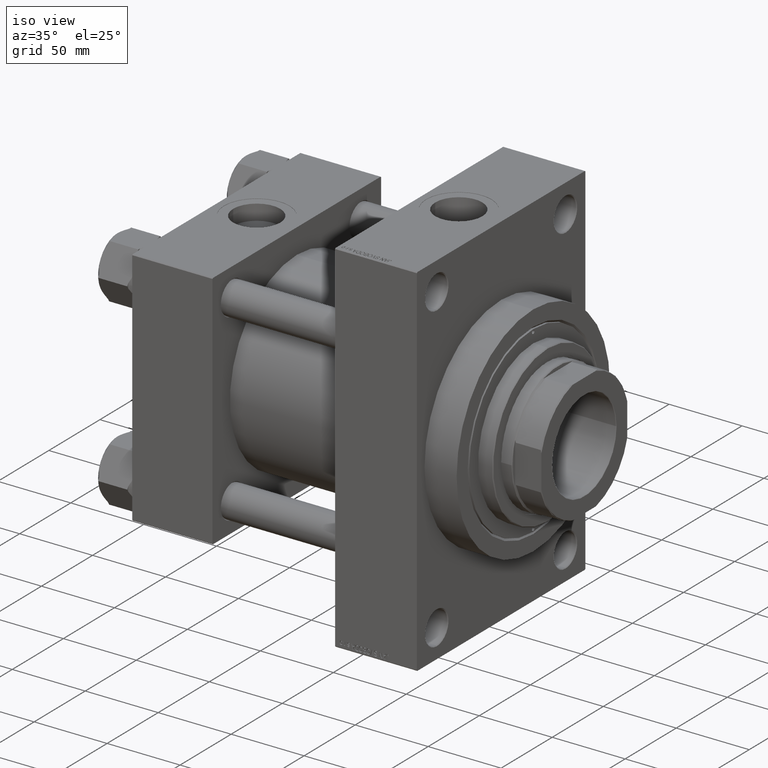
[diagram: clean part render]
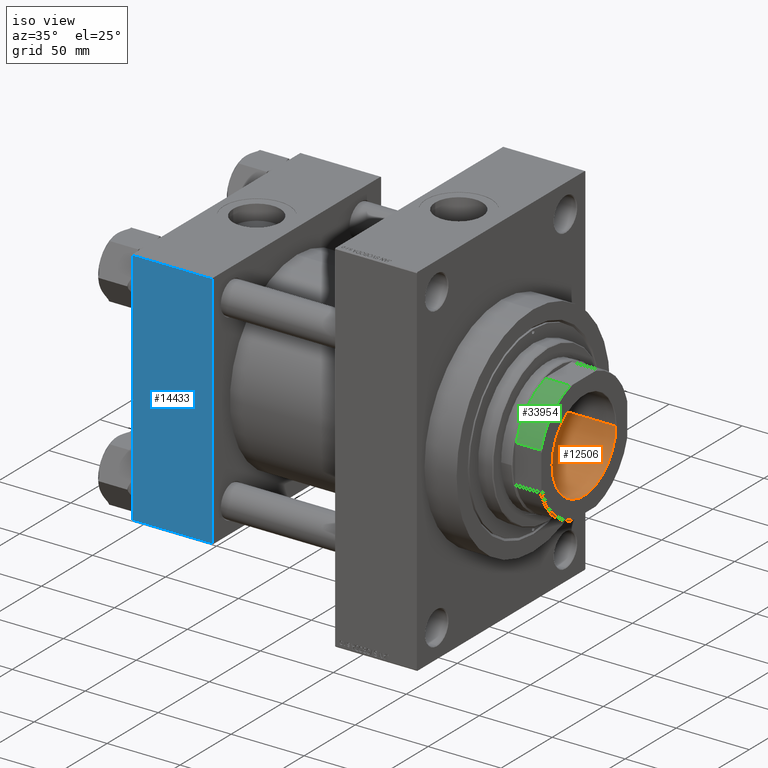
[diagram: same view with three faces highlighted in distinct colors, each labeled with its STEP entity id]
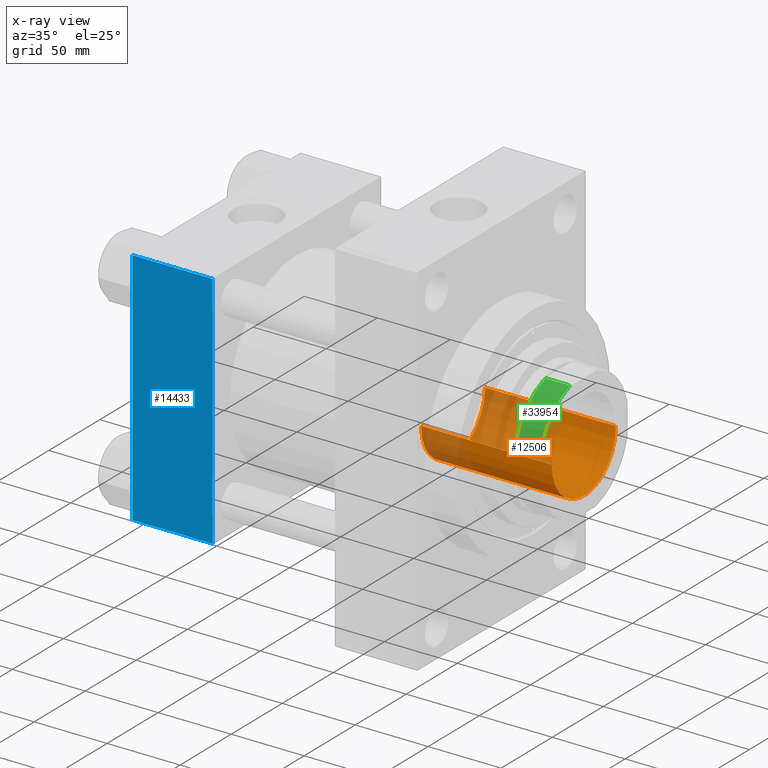
[diagram: x-ray of the same camera — body ghosted, the three highlighted faces saturated]
A machine part, iso view with three faces highlighted in distinct colors.
The next image is the same camera in x-ray (body ghosted, the three faces saturated) — at least one of them is partly hidden behind the body in this view.
Their STEP definitions:

[orange] entity #12506 — the highlighted cylindrical surface (partial cylindrical patch) has radius 31.25 mm, axis along (1, 0, 0).
#1422 = VERTEX_POINT ( 'NONE', #21569 ) ;
#1540 = ORIENTED_EDGE ( 'NONE', *, *, #22266, .F. ) ;
#1758 = ORIENTED_EDGE ( 'NONE', *, *, #19189, .T. ) ;
#2336 = AXIS2_PLACEMENT_3D ( 'NONE', #26481, #3904, #3413 ) ;
#3413 = DIRECTION ( 'NONE',  ( 1.000000000000000000, 0.000000000000000000, 0.000000000000000000 ) ) ;
#3904 = DIRECTION ( 'NONE',  ( -0.000000000000000000, -0.000000000000000000, 1.000000000000000000 ) ) ;
#3947 = ORIENTED_EDGE ( 'NONE', *, *, #10087, .T. ) ;
#4106 = VECTOR ( 'NONE', #26735, 1000.000000000000000 ) ;
#5589 = CARTESIAN_POINT ( 'NONE',  ( -31.24999999999998579, 3.827021247335477324E-15, 106.9999999999999858 ) ) ;
#8546 = AXIS2_PLACEMENT_3D ( 'NONE', #49613, #25808, #11076 ) ;
#10087 = EDGE_CURVE ( 'NONE', #42101, #1422, #33010, .T. ) ;
#10661 = EDGE_LOOP ( 'NONE', ( #1540, #24785, #1758, #3947 ) ) ;
#10958 = CIRCLE ( 'NONE', #8546, 31.24999999999998579 ) ;
#11076 = DIRECTION ( 'NONE',  ( 1.000000000000000000, 0.000000000000000000, 0.000000000000000000 ) ) ;
#11791 = CARTESIAN_POINT ( 'NONE',  ( 31.24999999999998579, 0.000000000000000000, 106.9999999999999858 ) ) ;
#12506 = ADVANCED_FACE ( 'NONE', ( #41684 ), #34574, .F. ) ;
#18623 = LINE ( 'NONE', #37393, #4106 ) ;
#19189 = EDGE_CURVE ( 'NONE', #26477, #42101, #18623, .T. ) ;
#20014 = DIRECTION ( 'NONE',  ( 1.000000000000000000, 0.000000000000000000, 0.000000000000000000 ) ) ;
#21569 = CARTESIAN_POINT ( 'NONE',  ( -31.24999999999999289, 3.827021247335478113E-15, 196.6999999999999602 ) ) ;
#22266 = EDGE_CURVE ( 'NONE', #47844, #1422, #31793, .T. ) ;
#22488 = AXIS2_PLACEMENT_3D ( 'NONE', #23314, #39774, #20014 ) ;
#23314 = CARTESIAN_POINT ( 'NONE',  ( 0.000000000000000000, 0.000000000000000000, 196.6999999999999602 ) ) ;
#24785 = ORIENTED_EDGE ( 'NONE', *, *, #33615, .F. ) ;
#25808 = DIRECTION ( 'NONE',  ( -0.000000000000000000, -0.000000000000000000, 1.000000000000000000 ) ) ;
#26477 = VERTEX_POINT ( 'NONE', #11791 ) ;
#26481 = CARTESIAN_POINT ( 'NONE',  ( 0.000000000000000000, 0.000000000000000000, 196.9999999999999716 ) ) ;
#26735 = DIRECTION ( 'NONE',  ( -0.000000000000000000, -0.000000000000000000, 1.000000000000000000 ) ) ;
#28241 = CARTESIAN_POINT ( 'NONE',  ( -31.24999999999999289, 3.827021247335478113E-15, 196.9999999999999716 ) ) ;
#31793 = LINE ( 'NONE', #28241, #45486 ) ;
#33010 = CIRCLE ( 'NONE', #22488, 31.24999999999999289 ) ;
#33615 = EDGE_CURVE ( 'NONE', #26477, #47844, #10958, .T. ) ;
#34574 = CYLINDRICAL_SURFACE ( 'NONE', #2336, 31.24999999999999289 ) ;
#37393 = CARTESIAN_POINT ( 'NONE',  ( 31.24999999999999289, 0.000000000000000000, 196.9999999999999716 ) ) ;
#39774 = DIRECTION ( 'NONE',  ( 0.000000000000000000, 0.000000000000000000, 1.000000000000000000 ) ) ;
#41684 = FACE_OUTER_BOUND ( 'NONE', #10661, .T. ) ;
#42101 = VERTEX_POINT ( 'NONE', #42268 ) ;
#42268 = CARTESIAN_POINT ( 'NONE',  ( 31.24999999999999289, 0.000000000000000000, 196.6999999999999602 ) ) ;
#45486 = VECTOR ( 'NONE', #47252, 1000.000000000000000 ) ;
#47252 = DIRECTION ( 'NONE',  ( -0.000000000000000000, -0.000000000000000000, 1.000000000000000000 ) ) ;
#47844 = VERTEX_POINT ( 'NONE', #5589 ) ;
#49613 = CARTESIAN_POINT ( 'NONE',  ( 0.000000000000000000, 0.000000000000000000, 106.9999999999999858 ) ) ;

[blue] entity #14433 — the highlighted planar face has unit normal (0, 1, -0).
#1256 = CARTESIAN_POINT ( 'NONE',  ( 55.00000000000000000, -82.49999999999997158, 82.50000000000001421 ) ) ;
#1293 = VERTEX_POINT ( 'NONE', #10723 ) ;
#1911 = LINE ( 'NONE', #2905, #28309 ) ;
#2905 = CARTESIAN_POINT ( 'NONE',  ( 55.00000000000000000, -82.50000000000000000, -81.99999999999998579 ) ) ;
#5174 = DIRECTION ( 'NONE',  ( -1.000000000000000000, 0.000000000000000000, 0.000000000000000000 ) ) ;
#5529 = EDGE_CURVE ( 'NONE', #9730, #32633, #20289, .T. ) ;
#6781 = EDGE_CURVE ( 'NONE', #14187, #32633, #1911, .T. ) ;
#8892 = AXIS2_PLACEMENT_3D ( 'NONE', #28140, #43606, #36496 ) ;
#9345 = VECTOR ( 'NONE', #36971, 1000.000000000000000 ) ;
#9384 = EDGE_CURVE ( 'NONE', #9730, #1293, #31296, .T. ) ;
#9730 = VERTEX_POINT ( 'NONE', #28916 ) ;
#10096 = CARTESIAN_POINT ( 'NONE',  ( 0.000000000000000000, -82.49999999999997158, 82.50000000000001421 ) ) ;
#10723 = CARTESIAN_POINT ( 'NONE',  ( 0.000000000000000000, -82.49999999999997158, 82.00000000000001421 ) ) ;
#11709 = EDGE_LOOP ( 'NONE', ( #46611, #12321, #23482, #16550 ) ) ;
#12321 = ORIENTED_EDGE ( 'NONE', *, *, #6781, .T. ) ;
#12538 = CARTESIAN_POINT ( 'NONE',  ( 55.00000000000000000, -82.49999999999997158, 82.00000000000001421 ) ) ;
#12922 = DIRECTION ( 'NONE',  ( 0.000000000000000000, -1.682156097916903588E-16, -1.000000000000000000 ) ) ;
#14187 = VERTEX_POINT ( 'NONE', #45643 ) ;
#14433 = ADVANCED_FACE ( 'NONE', ( #48388 ), #17221, .F. ) ;
#16550 = ORIENTED_EDGE ( 'NONE', *, *, #9384, .T. ) ;
#17221 = PLANE ( 'NONE',  #8892 ) ;
#17370 = DIRECTION ( 'NONE',  ( 1.000000000000000000, 0.000000000000000000, 0.000000000000000000 ) ) ;
#20289 = LINE ( 'NONE', #1256, #25013 ) ;
#21917 = VECTOR ( 'NONE', #5174, 1000.000000000000000 ) ;
#21993 = CARTESIAN_POINT ( 'NONE',  ( 55.00000000000000000, -82.50000000000000000, -81.99999999999998579 ) ) ;
#23482 = ORIENTED_EDGE ( 'NONE', *, *, #5529, .F. ) ;
#25013 = VECTOR ( 'NONE', #12922, 1000.000000000000000 ) ;
#28140 = CARTESIAN_POINT ( 'NONE',  ( 55.00000000000000000, -82.49999999999997158, 82.50000000000001421 ) ) ;
#28309 = VECTOR ( 'NONE', #17370, 1000.000000000000000 ) ;
#28916 = CARTESIAN_POINT ( 'NONE',  ( 55.00000000000000000, -82.49999999999997158, 82.00000000000001421 ) ) ;
#31296 = LINE ( 'NONE', #12538, #21917 ) ;
#32633 = VERTEX_POINT ( 'NONE', #21993 ) ;
#32911 = LINE ( 'NONE', #10096, #9345 ) ;
#36496 = DIRECTION ( 'NONE',  ( 0.000000000000000000, 1.682156097916903588E-16, 1.000000000000000000 ) ) ;
#36971 = DIRECTION ( 'NONE',  ( 0.000000000000000000, -1.682156097916903588E-16, -1.000000000000000000 ) ) ;
#40276 = EDGE_CURVE ( 'NONE', #1293, #14187, #32911, .T. ) ;
#43606 = DIRECTION ( 'NONE',  ( 0.000000000000000000, 1.000000000000000000, -1.682156097916903588E-16 ) ) ;
#45643 = CARTESIAN_POINT ( 'NONE',  ( 0.000000000000000000, -82.50000000000000000, -81.99999999999998579 ) ) ;
#46611 = ORIENTED_EDGE ( 'NONE', *, *, #40276, .T. ) ;
#48388 = FACE_OUTER_BOUND ( 'NONE', #11709, .T. ) ;

[green] entity #33954 — the highlighted cylindrical surface (partial cylindrical patch) has radius 44 mm, axis along (1, 0, 0).
#2921 = DIRECTION ( 'NONE',  ( 1.000000000000000000, 0.000000000000000000, 0.000000000000000000 ) ) ;
#3145 = DIRECTION ( 'NONE',  ( -1.000000000000000000, 0.000000000000000000, 0.000000000000000000 ) ) ;
#4601 = CARTESIAN_POINT ( 'NONE',  ( 13.11487704860396164, -42.00000000000000711, 179.4999999999998579 ) ) ;
#8446 = DIRECTION ( 'NONE',  ( -0.000000000000000000, -0.000000000000000000, -1.000000000000000000 ) ) ;
#9912 = CARTESIAN_POINT ( 'NONE',  ( 42.00000000000000000, -13.11487704860398651, -0.001000000000001000089 ) ) ;
#10531 = FACE_OUTER_BOUND ( 'NONE', #45815, .T. ) ;
#10770 = CYLINDRICAL_SURFACE ( 'NONE', #33659, 44.00000000000000000 ) ;
#12305 = VERTEX_POINT ( 'NONE', #15127 ) ;
#13971 = EDGE_CURVE ( 'NONE', #29434, #35358, #36538, .T. ) ;
#15127 = CARTESIAN_POINT ( 'NONE',  ( 13.11487704860396164, -42.00000000000000711, 196.4999999999997442 ) ) ;
#18336 = EDGE_CURVE ( 'NONE', #35358, #12305, #27527, .T. ) ;
#18854 = AXIS2_PLACEMENT_3D ( 'NONE', #38127, #21224, #3145 ) ;
#20179 = CARTESIAN_POINT ( 'NONE',  ( 42.00000000000000000, -13.11487704860398651, 196.4999999999997442 ) ) ;
#20687 = DIRECTION ( 'NONE',  ( -0.000000000000000000, -0.000000000000000000, 1.000000000000000000 ) ) ;
#20845 = CARTESIAN_POINT ( 'NONE',  ( 0.000000000000000000, 0.000000000000000000, 196.4999999999998010 ) ) ;
#21224 = DIRECTION ( 'NONE',  ( -0.000000000000000000, -0.000000000000000000, 1.000000000000000000 ) ) ;
#21430 = LINE ( 'NONE', #32840, #21978 ) ;
#21950 = EDGE_CURVE ( 'NONE', #39083, #12305, #21430, .T. ) ;
#21978 = VECTOR ( 'NONE', #20687, 1000.000000000000000 ) ;
#22883 = ORIENTED_EDGE ( 'NONE', *, *, #21950, .F. ) ;
#24926 = ORIENTED_EDGE ( 'NONE', *, *, #13971, .T. ) ;
#25385 = DIRECTION ( 'NONE',  ( -0.000000000000000000, -0.000000000000000000, 1.000000000000000000 ) ) ;
#27527 = CIRCLE ( 'NONE', #39685, 44.00000000000000000 ) ;
#28618 = EDGE_CURVE ( 'NONE', #39083, #29434, #40711, .T. ) ;
#29434 = VERTEX_POINT ( 'NONE', #39221 ) ;
#32840 = CARTESIAN_POINT ( 'NONE',  ( 13.11487704860396164, -42.00000000000000711, -0.001000000000001000089 ) ) ;
#33659 = AXIS2_PLACEMENT_3D ( 'NONE', #41451, #37900, #2921 ) ;
#33954 = ADVANCED_FACE ( 'NONE', ( #10531 ), #10770, .T. ) ;
#34986 = ORIENTED_EDGE ( 'NONE', *, *, #18336, .T. ) ;
#35358 = VERTEX_POINT ( 'NONE', #20179 ) ;
#36538 = LINE ( 'NONE', #9912, #48538 ) ;
#37900 = DIRECTION ( 'NONE',  ( -0.000000000000000000, -0.000000000000000000, 1.000000000000000000 ) ) ;
#38127 = CARTESIAN_POINT ( 'NONE',  ( 0.000000000000000000, 0.000000000000000000, 179.4999999999999147 ) ) ;
#39083 = VERTEX_POINT ( 'NONE', #4601 ) ;
#39221 = CARTESIAN_POINT ( 'NONE',  ( 42.00000000000000000, -13.11487704860398651, 179.4999999999999147 ) ) ;
#39685 = AXIS2_PLACEMENT_3D ( 'NONE', #20845, #8446, #43435 ) ;
#40711 = CIRCLE ( 'NONE', #18854, 44.00000000000000000 ) ;
#41451 = CARTESIAN_POINT ( 'NONE',  ( 0.000000000000000000, 0.000000000000000000, -0.001000000000001000089 ) ) ;
#43435 = DIRECTION ( 'NONE',  ( 1.000000000000000000, 0.000000000000000000, 0.000000000000000000 ) ) ;
#45815 = EDGE_LOOP ( 'NONE', ( #24926, #34986, #22883, #47448 ) ) ;
#47448 = ORIENTED_EDGE ( 'NONE', *, *, #28618, .T. ) ;
#48538 = VECTOR ( 'NONE', #25385, 1000.000000000000000 ) ;